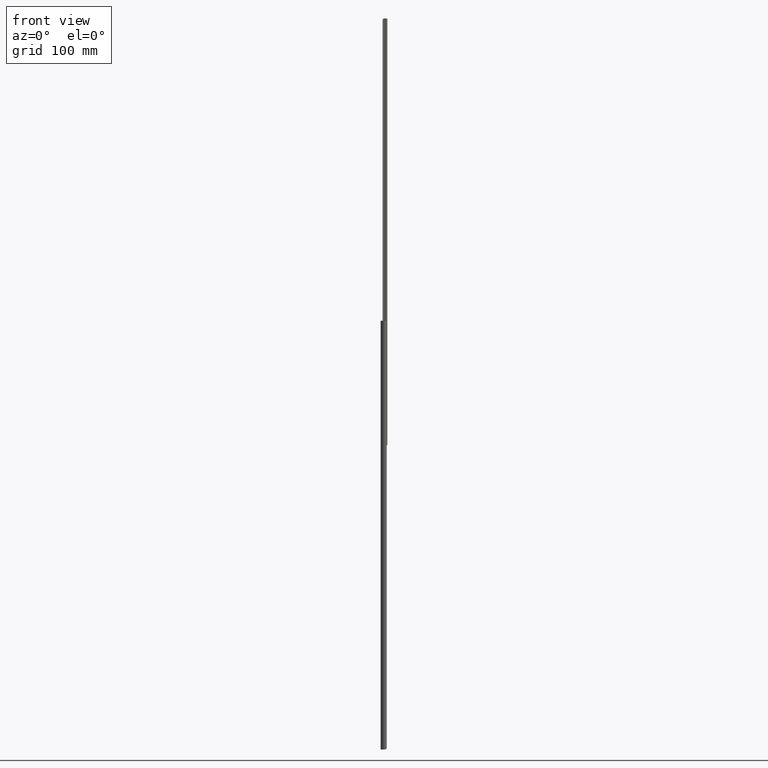
[diagram: clean part render]
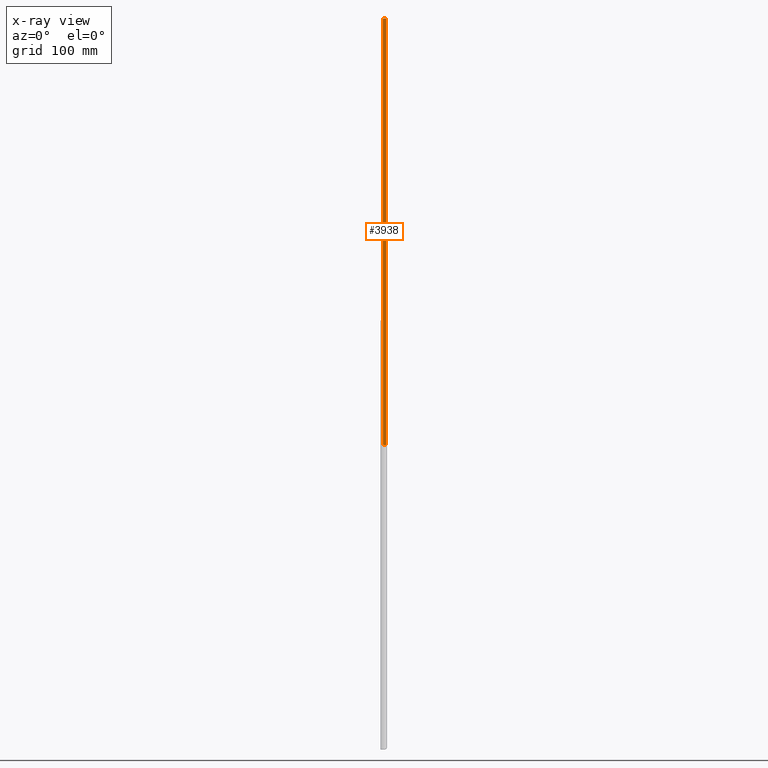
[diagram: x-ray — body ghosted, one internal face saturated and labeled with its STEP entity id]
A machine part, front view, then the same camera in x-ray: the body is ghosted and one INTERNAL B-rep face — a face not visible from any outside direction — is saturated and labeled: STEP entity #3938.
In plain terms, the highlighted cylindrical surface (edge-blend (fillet) strip) has radius 3.88 mm, axis along (0, 0, 1).
Its self-contained STEP definition (entity closure, byte-faithful):
#52 = CARTESIAN_POINT ( 'NONE',  ( -4.249999999999886313, -13.66999999999971926, -606.5999999999999091 ) ) ;
#75 = CYLINDRICAL_SURFACE ( 'NONE', #4076, 3.879999999999934612 ) ;
#100 = LINE ( 'NONE', #1338, #386 ) ;
#113 = AXIS2_PLACEMENT_3D ( 'NONE', #3899, #1881, #1092 ) ;
#143 = CARTESIAN_POINT ( 'NONE',  ( -4.249999999999886313, -13.66999999999971926, 0.0000000000000000000 ) ) ;
#224 = EDGE_CURVE ( 'NONE', #2670, #1890, #4780, .T. ) ;
#239 = CARTESIAN_POINT ( 'NONE',  ( -4.992597613371491327, -9.855939079553023063, 2.549569171235442048E-16 ) ) ;
#275 = CARTESIAN_POINT ( 'NONE',  ( -4.784572197400779991, -9.827002138204129267, -606.5999999999999091 ) ) ;
#295 = CARTESIAN_POINT ( 'NONE',  ( -5.569845271913516527, -10.02020197827794412, -0.1676120122247826971 ) ) ;
#355 = CARTESIAN_POINT ( 'NONE',  ( -6.560796516356761643, -10.55317157033079845, -605.2686679621998564 ) ) ;
#386 = VECTOR ( 'NONE', #1756, 1000.000000000000000 ) ;
#459 = ORIENTED_EDGE ( 'NONE', *, *, #590, .T. ) ;
#471 = LINE ( 'NONE', #4178, #3085 ) ;
#590 = EDGE_CURVE ( 'NONE', #2423, #3286, #2062, .T. ) ;
#785 = ORIENTED_EDGE ( 'NONE', *, *, #5058, .F. ) ;
#903 = EDGE_CURVE ( 'NONE', #1890, #2322, #3529, .T. ) ;
#917 = VERTEX_POINT ( 'NONE', #5112 ) ;
#1092 = DIRECTION ( 'NONE',  ( 1.000000000000000000, 0.0000000000000000000, 0.0000000000000000000 ) ) ;
#1095 = CARTESIAN_POINT ( 'NONE',  ( -6.413004138777909979, -10.44617229672463310, -605.6427093895435974 ) ) ;
#1338 = CARTESIAN_POINT ( 'NONE',  ( -1.975837320574043598, -10.52634224071577052, -606.5999999999999091 ) ) ;
#1479 = CIRCLE ( 'NONE', #2406, 3.879999999999934612 ) ;
#1492 = CARTESIAN_POINT ( 'NONE',  ( -5.573767431035831166, -10.01733864778439020, -606.4399632612093001 ) ) ;
#1656 = DIRECTION ( 'NONE',  ( 0.0000000000000000000, 0.0000000000000000000, 1.000000000000000000 ) ) ;
#1679 = DIRECTION ( 'NONE',  ( 1.000000000000000000, 0.0000000000000000000, 0.0000000000000000000 ) ) ;
#1734 = DIRECTION ( 'NONE',  ( 0.0000000000000000000, 0.0000000000000000000, 1.000000000000000000 ) ) ;
#1756 = DIRECTION ( 'NONE',  ( 0.0000000000000000000, 0.0000000000000000000, 1.000000000000000000 ) ) ;
#1879 = CARTESIAN_POINT ( 'NONE',  ( -4.992412213781824093, -9.855913289930022358, -606.6000000000000227 ) ) ;
#1881 = DIRECTION ( 'NONE',  ( 0.0000000000000000000, 0.0000000000000000000, 1.000000000000000000 ) ) ;
#1890 = VERTEX_POINT ( 'NONE', #3864 ) ;
#1929 = CARTESIAN_POINT ( 'NONE',  ( -4.784572197400779991, -9.827002138204129267, 0.0000000000000000000 ) ) ;
#2062 = B_SPLINE_CURVE_WITH_KNOTS ( 'NONE', 3,
 ( #3920, #3950, #3464, #4400, #5160, #3063, #5098, #295, #3975, #2751, #239, #1929 ),
 .UNSPECIFIED., .F., .F.,
 ( 4, 2, 2, 2, 2, 4 ),
 ( 0.0000000000000000000, 0.0006200692926304413651, 0.001240138585260882730, 0.001550173231576105256, 0.001860207877891327782, 0.002480277170521774134 ),
 .UNSPECIFIED. ) ;
#2183 = EDGE_CURVE ( 'NONE', #2670, #917, #100, .T. ) ;
#2244 = EDGE_CURVE ( 'NONE', #2322, #2423, #471, .T. ) ;
#2322 = VERTEX_POINT ( 'NONE', #4638 ) ;
#2406 = AXIS2_PLACEMENT_3D ( 'NONE', #143, #2885, #4929 ) ;
#2423 = VERTEX_POINT ( 'NONE', #4807 ) ;
#2670 = VERTEX_POINT ( 'NONE', #4766 ) ;
#2751 = CARTESIAN_POINT ( 'NONE',  ( -5.197383728805709424, -9.902295950817894266, -0.03369471193240490547 ) ) ;
#2885 = DIRECTION ( 'NONE',  ( 0.0000000000000000000, 0.0000000000000000000, 1.000000000000000000 ) ) ;
#3063 = CARTESIAN_POINT ( 'NONE',  ( -5.826280942680599928, -10.12359028865027177, -0.3134790490308977939 ) ) ;
#3085 = VECTOR ( 'NONE', #1734, 1000.000000000000000 ) ;
#3100 = ORIENTED_EDGE ( 'NONE', *, *, #903, .T. ) ;
#3155 = CARTESIAN_POINT ( 'NONE',  ( -5.746170375181105960, -10.08593335126087709, -606.3477082850863553 ) ) ;
#3286 = VERTEX_POINT ( 'NONE', #4770 ) ;
#3464 = CARTESIAN_POINT ( 'NONE',  ( -6.413394387025817878, -10.44645653941083729, -0.9581432950505885948 ) ) ;
#3529 = B_SPLINE_CURVE_WITH_KNOTS ( 'NONE', 3,
 ( #275, #1879, #5138, #1492, #3155, #4799, #4279, #1095, #3539, #355 ),
 .UNSPECIFIED., .F., .F.,
 ( 4, 2, 2, 2, 4 ),
 ( 0.0000000000000000000, 0.0006200461343131217877, 0.001240092268626243575, 0.001860138402939365363, 0.002480184537252487151 ),
 .UNSPECIFIED. ) ;
#3539 = CARTESIAN_POINT ( 'NONE',  ( -6.499353042516574419, -10.50761777469956115, -605.4638851016192120 ) ) ;
#3572 = EDGE_LOOP ( 'NONE', ( #4040, #3100, #4290, #459, #785, #3967 ) ) ;
#3680 = FACE_OUTER_BOUND ( 'NONE', #3572, .T. ) ;
#3864 = CARTESIAN_POINT ( 'NONE',  ( -4.784572197400779991, -9.827002138204129267, -606.5999999999999091 ) ) ;
#3899 = CARTESIAN_POINT ( 'NONE',  ( -4.249999999999886313, -13.66999999999971926, -606.5999999999999091 ) ) ;
#3920 = CARTESIAN_POINT ( 'NONE',  ( -6.560796516356761643, -10.55317157033079845, -1.331332037800058377 ) ) ;
#3938 = ADVANCED_FACE ( 'NONE', ( #3680 ), #75, .T. ) ;
#3950 = CARTESIAN_POINT ( 'NONE',  ( -6.499302760021591574, -10.50758049558174889, -1.135955141709733107 ) ) ;
#3967 = ORIENTED_EDGE ( 'NONE', *, *, #2183, .F. ) ;
#3975 = CARTESIAN_POINT ( 'NONE',  ( -5.479655973262334001, -9.988691995991308303, -0.1287068210431799031 ) ) ;
#4040 = ORIENTED_EDGE ( 'NONE', *, *, #224, .T. ) ;
#4076 = AXIS2_PLACEMENT_3D ( 'NONE', #52, #1656, #1679 ) ;
#4178 = CARTESIAN_POINT ( 'NONE',  ( -6.560796516356761643, -10.55317157033079845, -606.5999999999999091 ) ) ;
#4279 = CARTESIAN_POINT ( 'NONE',  ( -6.190034508489230092, -10.30727520147021359, -605.9684359901941662 ) ) ;
#4290 = ORIENTED_EDGE ( 'NONE', *, *, #2244, .T. ) ;
#4400 = CARTESIAN_POINT ( 'NONE',  ( -6.191395659781303351, -10.30808230197341402, -0.6332720877888552424 ) ) ;
#4638 = CARTESIAN_POINT ( 'NONE',  ( -6.560796516356761643, -10.55317157033079845, -605.2686679621998564 ) ) ;
#4766 = CARTESIAN_POINT ( 'NONE',  ( -1.975837320574043598, -10.52634224071577052, -606.5999999999999091 ) ) ;
#4770 = CARTESIAN_POINT ( 'NONE',  ( -4.784572197400779991, -9.827002138204129267, 0.0000000000000000000 ) ) ;
#4780 = CIRCLE ( 'NONE', #113, 3.879999999999934612 ) ;
#4799 = CARTESIAN_POINT ( 'NONE',  ( -6.057828986005362459, -10.23258616231151130, -606.1091734042763619 ) ) ;
#4807 = CARTESIAN_POINT ( 'NONE',  ( -6.560796516356761643, -10.55317157033079845, -1.331332037800058377 ) ) ;
#4929 = DIRECTION ( 'NONE',  ( 1.000000000000000000, 0.0000000000000000000, 0.0000000000000000000 ) ) ;
#5058 = EDGE_CURVE ( 'NONE', #917, #3286, #1479, .T. ) ;
#5098 = CARTESIAN_POINT ( 'NONE',  ( -5.742877272599166361, -10.08749604464760985, -0.2597243468550486378 ) ) ;
#5112 = CARTESIAN_POINT ( 'NONE',  ( -1.975837320574043598, -10.52634224071577052, 0.0000000000000000000 ) ) ;
#5138 = CARTESIAN_POINT ( 'NONE',  ( -5.191694563434372967, -9.900715384235486027, -606.5678672907756663 ) ) ;
#5160 = CARTESIAN_POINT ( 'NONE',  ( -6.057897829784789856, -10.23269884340770730, -0.4911371492472288436 ) ) ;